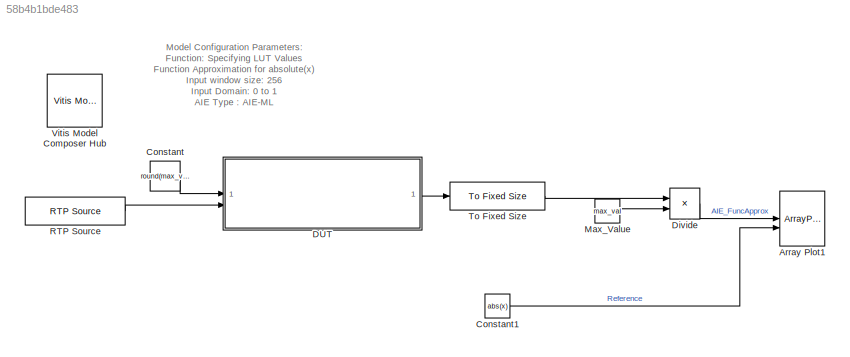
MODEL slx_58b4b1bde483
KIND model
CONFIG AbsTol = auto
CONFIG EnableMultiTasking = off
CONFIG FixedStep = auto
CONFIG InitFcn = FuncApprox_Init_RTP;
CONFIG MaxStep = auto
CONFIG MinStep = auto
CONFIG PostLoadFcn = FuncApprox_Init_RTP;
CONFIG RelTol = 1e-3
CONFIG SampleTimeConstraint = Unconstrained
CONFIG SolverName = VariableStepAuto
CONFIG StartTime = 0.0
CONFIG StopTime = 512/30e3
BLOCK [ArrayPlot] Array Plot1
  GraphicalSettings = {"Style":{"BackgroundColor":[0.12941176470588237,0.12941176470588237,0.12941176470588237],"AxesColor":[0.070588235294117646,0.070588235294117646,0.070588235294117646],"LabelsColor":[0.85098039215686272,0.85098039215686272,0.85098039215686272],"PreserveColors":false,"Visible":[true,true],"LineStyle":["-","-"],"LineWidth":[1.5,1.5],"BarWidth":[0.9,0.9],"LineColor":[[1,0.90980392156862744,0.392156862...<+723ch>
  NumInputPorts = 2
  ScopeFrameLocation = window
  ShowLegend = on
  Visible = on
  WasSavedAsWebScope = on
  WindowPosition = [1.000000,1.000000,1920.000000,1127.000000,]
  YLimits = [-0.0625 0.5625]
BLOCK [Constant] Constant
  OutDataTypeStr = int16
  SampleTime = 1/30e3
  Value = round(max_val* (0:255)/256)
BLOCK [Constant] Constant1
  OutDataTypeStr = single
  SampleTime = 1/30e3
  Value = abs(x)
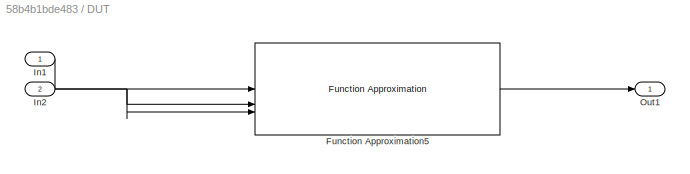
BLOCK [SubSystem] DUT
BLOCK [Reference] DUT/Function Approximation5  REF=aieDSP/Function Approximation
  SourceBlock = aieDSP/Function Approximation
  SourceType = Function Approximation
BLOCK [Inport] DUT/In1
BLOCK [Inport] DUT/In2
  Port = 2
BLOCK [Outport] DUT/Out1
BLOCK [Product] Divide
  Inputs = */
BLOCK [Constant] Max_Value
  OutDataTypeStr = single
  SampleTime = 1/30e3
  Value = max_val
BLOCK [Reference] RTP Source  REF=aieUtilities/RTP Source
  SourceBlock = aieUtilities/RTP Source
  SourceType = RTP Source
BLOCK [Reference] To Fixed Size  REF=aieUtilities/To Fixed Size
  SourceBlock = aieUtilities/To Fixed Size
  SourceType = To Fixed Size
BLOCK [Reference] Vitis Model Composer Hub  REF=vmcUtilities/Vitis Model Composer Hub
  SourceBlock = vmcUtilities/Vitis Model Composer Hub
  SourceType = VMC Hub
  Tag = genX
  UserDataPersistent = on
ANNOTATION (root): Model Configuration Parameters: Function: Specifying LUT Values Function Approximation for absolute(x) Input window size : 256 Input Domain: 0 to 1 AIE Type : AIE-ML
LINE Constant1:1 -> Array Plot1:2
LINE Constant:1 -> DUT:1
LINE DUT/Function Approximation5:1 -> DUT/Out1:1
LINE DUT/In1:1 -> DUT/Function Approximation5:1
NET DUT/In2:1 -> DUT/Function Approximation5:2, DUT/Function Approximation5:3
LINE DUT:1 -> To Fixed Size:1
LINE Divide:1 -> Array Plot1:1
LINE Max_Value:1 -> Divide:2
LINE RTP Source:1 -> DUT:2
LINE To Fixed Size:1 -> Divide:1
note: NET lines group one-source signal fan-out (src -> all destinations, sorted); 1:1 wires keep LINE
